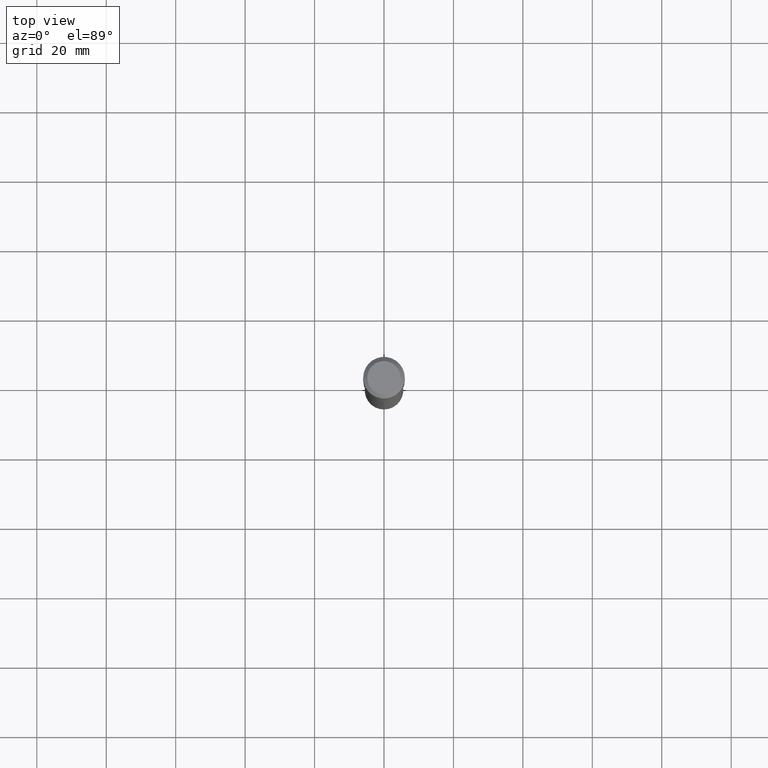
[diagram: clean part render]
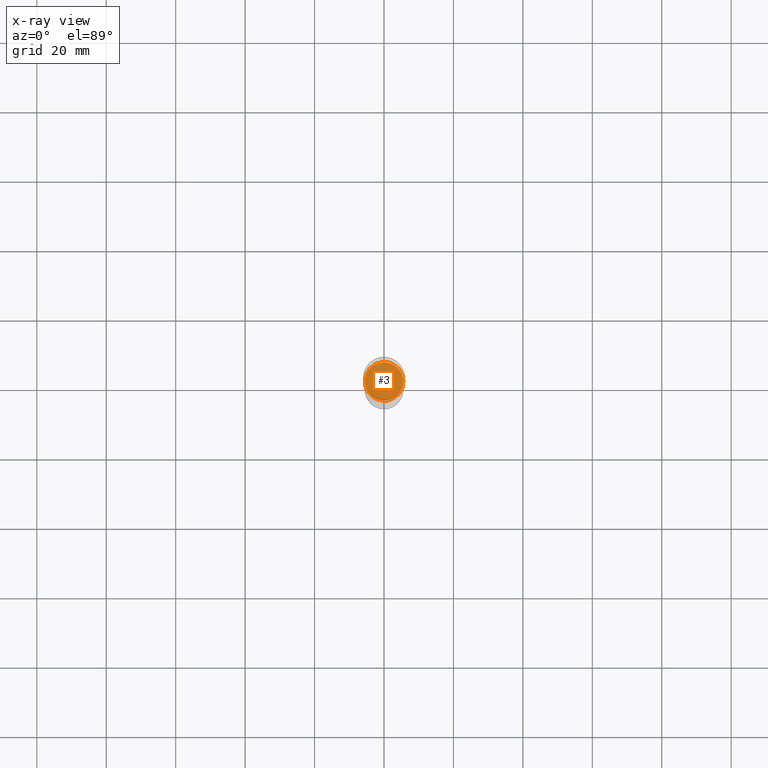
[diagram: x-ray — body ghosted, one internal face saturated and labeled with its STEP entity id]
A machine part, top view, then the same camera in x-ray: the body is ghosted and one INTERNAL B-rep face — a face not visible from any outside direction — is saturated and labeled: STEP entity #3.
In plain terms, the highlighted planar face has unit normal (-0, 0, 1).
Its self-contained STEP definition (entity closure, byte-faithful):
#3 = ADVANCED_FACE ( 'NONE', ( #439 ), #349, .F. ) ;
#21 = DIRECTION ( 'NONE',  ( 1.000000000000000000, -6.982962677686265922E-15, 4.876176775795935793E-29 ) ) ;
#35 = AXIS2_PLACEMENT_3D ( 'NONE', #261, #72, #415 ) ;
#59 = CIRCLE ( 'NONE', #322, 0.2182499999999999996 ) ;
#65 = DIRECTION ( 'NONE',  ( -2.438088387897960049E-29, 3.491481338843145188E-15, 1.000000000000000000 ) ) ;
#72 = DIRECTION ( 'NONE',  ( -2.445468806185136597E-29, 3.491481338843145583E-15, 1.000000000000000000 ) ) ;
#75 = EDGE_CURVE ( 'NONE', #356, #110, #334, .T. ) ;
#92 = CARTESIAN_POINT ( 'NONE',  ( -0.2182499999999999996, -7.336950185125770658E-15, -2.546300000000000008 ) ) ;
#110 = VERTEX_POINT ( 'NONE', #92 ) ;
#128 = EDGE_LOOP ( 'NONE', ( #440, #146 ) ) ;
#146 = ORIENTED_EDGE ( 'NONE', *, *, #379, .F. ) ;
#173 = DIRECTION ( 'NONE',  ( -2.445468806185136597E-29, 3.491481338843145583E-15, 1.000000000000000000 ) ) ;
#181 = AXIS2_PLACEMENT_3D ( 'NONE', #396, #65, #21 ) ;
#206 = CARTESIAN_POINT ( 'NONE',  ( 6.226897221189214281E-29, -8.890358933096301695E-15, -2.546300000000000008 ) ) ;
#261 = CARTESIAN_POINT ( 'NONE',  ( 6.226897221189214281E-29, -8.890358933096301695E-15, -2.546300000000000008 ) ) ;
#322 = AXIS2_PLACEMENT_3D ( 'NONE', #206, #173, #359 ) ;
#334 = CIRCLE ( 'NONE', #35, 0.2182499999999999996 ) ;
#349 = PLANE ( 'NONE',  #181 ) ;
#356 = VERTEX_POINT ( 'NONE', #361 ) ;
#359 = DIRECTION ( 'NONE',  ( 1.000000000000000000, -6.982962677686264344E-15, 0.000000000000000000 ) ) ;
#361 = CARTESIAN_POINT ( 'NONE',  ( 0.2182499999999999996, -1.041439053750132874E-14, -2.546300000000000008 ) ) ;
#379 = EDGE_CURVE ( 'NONE', #110, #356, #59, .T. ) ;
#396 = CARTESIAN_POINT ( 'NONE',  ( 6.226897221189214281E-29, -8.890358933096301695E-15, -2.546300000000000008 ) ) ;
#415 = DIRECTION ( 'NONE',  ( 1.000000000000000000, -6.982962677686264344E-15, 0.000000000000000000 ) ) ;
#439 = FACE_OUTER_BOUND ( 'NONE', #128, .T. ) ;
#440 = ORIENTED_EDGE ( 'NONE', *, *, #75, .F. ) ;